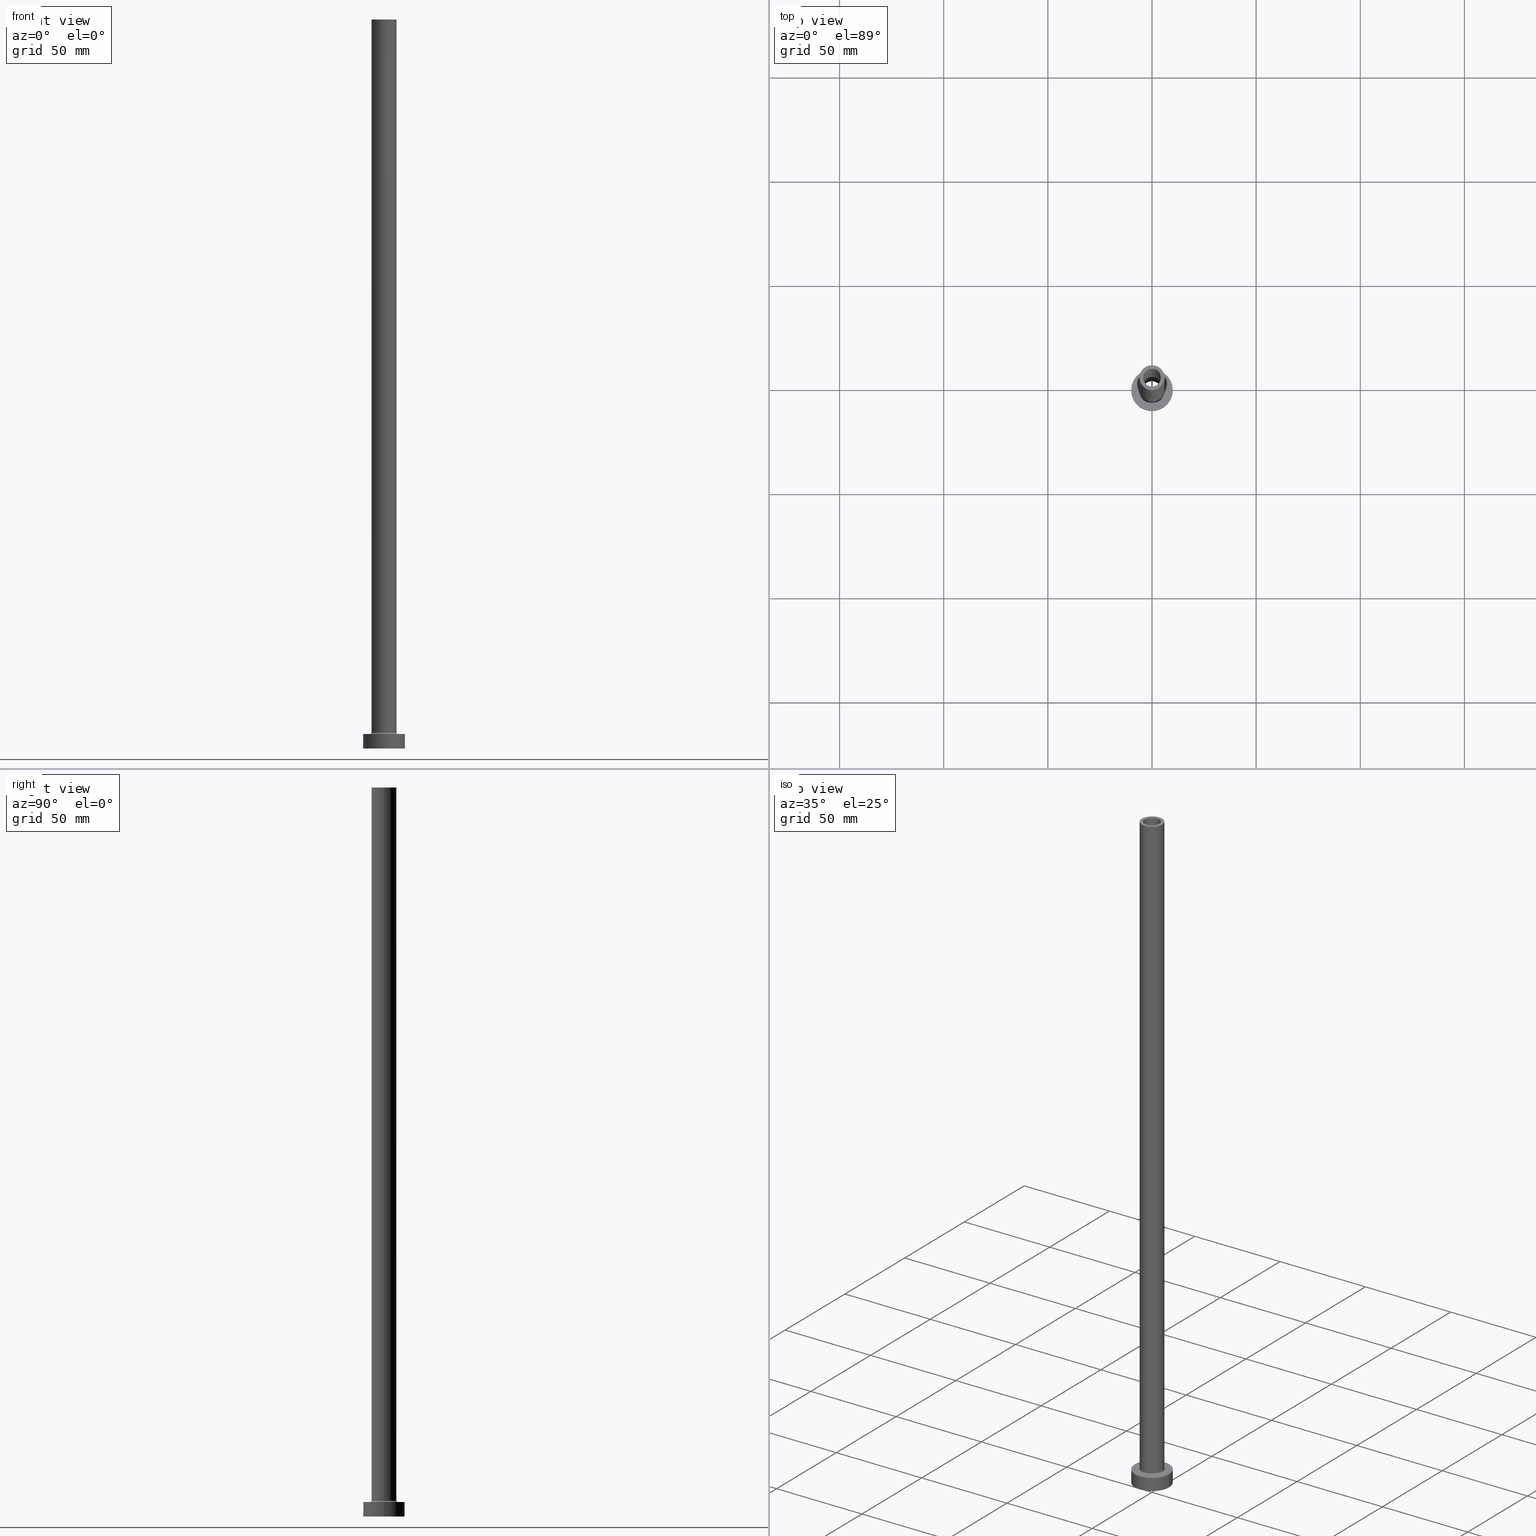
[diagram: canonical four-view strip — front | top / right | iso, engineering-drawing reading convention]
A machine part, canonical four-view strip (front | top / right | iso — engineering-drawing reading convention). The complete STEP part file that produces these views, byte-faithful:
ISO-10303-21;
HEADER;
FILE_DESCRIPTION (( 'STEP AP203' ),
    '1' );
FILE_NAME ('a1d7.STEP',
    '2023-02-13T11:56:31',
    ( '' ),
    ( '' ),
    'SwSTEP 2.0',
    'SolidWorks 2019',
    '' );
FILE_SCHEMA (( 'CONFIG_CONTROL_DESIGN' ));
ENDSEC;

DATA;
#1 = CARTESIAN_POINT ( 'NONE',  ( 0.000000000000000000, 0.000000000000000000, 7.699999999999985079 ) ) ;
#2 = DIRECTION ( 'NONE',  ( -0.000000000000000000, -0.000000000000000000, -1.000000000000000000 ) ) ;
#3 = PERSON_AND_ORGANIZATION ( #210, #286 ) ;
#4 = VERTEX_POINT ( 'NONE', #328 ) ;
#5 = EDGE_CURVE ( 'NONE', #386, #117, #93, .T. ) ;
#6 = SECURITY_CLASSIFICATION_LEVEL ( 'unclassified' ) ;
#7 = CYLINDRICAL_SURFACE ( 'NONE', #53, 10.00000000000000000 ) ;
#8 = DIRECTION ( 'NONE',  ( -0.000000000000000000, -0.000000000000000000, -1.000000000000000000 ) ) ;
#9 = EDGE_CURVE ( 'NONE', #422, #156, #184, .T. ) ;
#10 = PERSON_AND_ORGANIZATION_ROLE ( 'creator' ) ;
#11 = LINE ( 'NONE', #371, #37 ) ;
#12 = DIRECTION ( 'NONE',  ( 1.000000000000000000, 0.000000000000000000, -0.000000000000000000 ) ) ;
#13 = LOCAL_TIME ( 12, 56, 31.00000000000000000, #297 ) ;
#14 = DIRECTION ( 'NONE',  ( 1.000000000000000000, 0.000000000000000000, -0.000000000000000000 ) ) ;
#15 = DIRECTION ( 'NONE',  ( 0.000000000000000000, 0.000000000000000000, -1.000000000000000000 ) ) ;
#16 = ORIENTED_EDGE ( 'NONE', *, *, #442, .T. ) ;
#17 = EDGE_CURVE ( 'NONE', #117, #433, #358, .T. ) ;
#18 = DIRECTION ( 'NONE',  ( -1.000000000000000000, 0.000000000000000000, 0.000000000000000000 ) ) ;
#19 = EDGE_LOOP ( 'NONE', ( #79, #384 ) ) ;
#20 = AXIS2_PLACEMENT_3D ( 'NONE', #75, #454, #147 ) ;
#21 = EDGE_LOOP ( 'NONE', ( #251, #455, #70, #245 ) ) ;
#22 = ADVANCED_FACE ( 'NONE', ( #259 ), #399, .T. ) ;
#23 = DIRECTION ( 'NONE',  ( -0.000000000000000000, -0.000000000000000000, -1.000000000000000000 ) ) ;
#24 = ORIENTED_EDGE ( 'NONE', *, *, #200, .T. ) ;
#25 = DIRECTION ( 'NONE',  ( 0.000000000000000000, 0.000000000000000000, -1.000000000000000000 ) ) ;
#26 = DIRECTION ( 'NONE',  ( 0.000000000000000000, 0.000000000000000000, 1.000000000000000000 ) ) ;
#27 = AXIS2_PLACEMENT_3D ( 'NONE', #269, #407, #230 ) ;
#28 = ORIENTED_EDGE ( 'NONE', *, *, #208, .T. ) ;
#29 = PRODUCT_DEFINITION_FORMATION_WITH_SPECIFIED_SOURCE ( 'LIBOVOLN�', '', #197, .NOT_KNOWN. ) ;
#30 = DIRECTION ( 'NONE',  ( 1.000000000000000000, 0.000000000000000000, 0.000000000000000000 ) ) ;
#31 = DIRECTION ( 'NONE',  ( 1.000000000000000000, 0.000000000000000000, 0.000000000000000000 ) ) ;
#32 = EDGE_CURVE ( 'NONE', #113, #60, #461, .T. ) ;
#33 = ORIENTED_EDGE ( 'NONE', *, *, #305, .T. ) ;
#34 = CARTESIAN_POINT ( 'NONE',  ( 4.400000000000000355, 5.388445916248354013E-16, 317.4450793488833256 ) ) ;
#35 = ORIENTED_EDGE ( 'NONE', *, *, #404, .F. ) ;
#36 = CIRCLE ( 'NONE', #414, 4.400000000000000355 ) ;
#37 = VECTOR ( 'NONE', #199, 1000.000000000000000 ) ;
#38 = CIRCLE ( 'NONE', #176, 6.700000000000001066 ) ;
#39 = CC_DESIGN_PERSON_AND_ORGANIZATION_ASSIGNMENT ( #157, #268, ( #29 ) ) ;
#40 = ORIENTED_EDGE ( 'NONE', *, *, #398, .F. ) ;
#41 = CALENDAR_DATE ( 2023, 13, 2 ) ;
#42 = CARTESIAN_POINT ( 'NONE',  ( 0.000000000000000000, 0.000000000000000000, 305.0000000000000568 ) ) ;
#43 = COORDINATED_UNIVERSAL_TIME_OFFSET ( 1, 0, .AHEAD. ) ;
#44 = CARTESIAN_POINT ( 'NONE',  ( 0.000000000000000000, 0.000000000000000000, 0.000000000000000000 ) ) ;
#45 = PRODUCT_DEFINITION_SHAPE ( 'NONE', 'NONE',  #391 ) ;
#46 = VECTOR ( 'NONE', #174, 1000.000000000000000 ) ;
#47 = CIRCLE ( 'NONE', #238, 4.400000000000000355 ) ;
#48 = CIRCLE ( 'NONE', #374, 10.00000000000000000 ) ;
#49 = DIRECTION ( 'NONE',  ( 0.000000000000000000, 0.000000000000000000, 1.000000000000000000 ) ) ;
#50 = DATE_AND_TIME ( #41, #416 ) ;
#51 = FACE_OUTER_BOUND ( 'NONE', #395, .T. ) ;
#52 = DIRECTION ( 'NONE',  ( 1.000000000000000000, 0.000000000000000000, -0.000000000000000000 ) ) ;
#53 = AXIS2_PLACEMENT_3D ( 'NONE', #335, #121, #86 ) ;
#54 = AXIS2_PLACEMENT_3D ( 'NONE', #224, #2, #375 ) ;
#55 = VECTOR ( 'NONE', #321, 1000.000000000000000 ) ;
#56 = DIRECTION ( 'NONE',  ( -0.000000000000000000, -0.000000000000000000, -1.000000000000000000 ) ) ;
#57 = EDGE_LOOP ( 'NONE', ( #99, #317 ) ) ;
#58 = DIRECTION ( 'NONE',  ( 0.000000000000000000, 0.000000000000000000, 1.000000000000000000 ) ) ;
#59 = CARTESIAN_POINT ( 'NONE',  ( -4.400000000000000355, 0.000000000000000000, 317.4450793488833256 ) ) ;
#60 = VERTEX_POINT ( 'NONE', #405 ) ;
#61 = ADVANCED_FACE ( 'NONE', ( #118, #409 ), #236, .T. ) ;
#62 = CIRCLE ( 'NONE', #126, 4.250000000000000000 ) ;
#63 = CIRCLE ( 'NONE', #112, 4.250000000000000000 ) ;
#64 = CARTESIAN_POINT ( 'NONE',  ( 0.000000000000000000, 0.000000000000000000, 7.000000000000000000 ) ) ;
#65 = ORIENTED_EDGE ( 'NONE', *, *, #248, .T. ) ;
#66 = ORIENTED_EDGE ( 'NONE', *, *, #177, .T. ) ;
#67 = LINE ( 'NONE', #114, #55 ) ;
#68 = ORIENTED_EDGE ( 'NONE', *, *, #288, .F. ) ;
#69 = DIRECTION ( 'NONE',  ( 0.000000000000000000, 0.000000000000000000, 1.000000000000000000 ) ) ;
#70 = ORIENTED_EDGE ( 'NONE', *, *, #327, .F. ) ;
#71 = ADVANCED_FACE ( 'NONE', ( #308, #51 ), #166, .F. ) ;
#72 = AXIS2_PLACEMENT_3D ( 'NONE', #191, #69, #30 ) ;
#73 = DIRECTION ( 'NONE',  ( 0.000000000000000000, 0.000000000000000000, 1.000000000000000000 ) ) ;
#74 = DIRECTION ( 'NONE',  ( 1.000000000000000000, 0.000000000000000000, 0.000000000000000000 ) ) ;
#75 = CARTESIAN_POINT ( 'NONE',  ( 0.000000000000000000, 0.000000000000000000, 7.000000000000000000 ) ) ;
#76 = ORIENTED_EDGE ( 'NONE', *, *, #305, .F. ) ;
#77 = EDGE_CURVE ( 'NONE', #148, #361, #47, .T. ) ;
#78 = CARTESIAN_POINT ( 'NONE',  ( 6.000000000000000888, 7.347880794884120722E-16, 7.699999999999985079 ) ) ;
#79 = ORIENTED_EDGE ( 'NONE', *, *, #327, .T. ) ;
#80 = PERSON_AND_ORGANIZATION ( #210, #286 ) ;
#81 = CARTESIAN_POINT ( 'NONE',  ( 0.000000000000000000, 0.000000000000000000, 350.0000000000000568 ) ) ;
#82 = PERSON_AND_ORGANIZATION ( #210, #286 ) ;
#83 = CARTESIAN_POINT ( 'NONE',  ( -4.400000000000000355, 0.000000000000000000, 0.000000000000000000 ) ) ;
#84 = PERSON_AND_ORGANIZATION ( #210, #286 ) ;
#85 = MANIFOLD_SOLID_BREP ( 'Odebrat vysunut�m4', #169 ) ;
#86 = DIRECTION ( 'NONE',  ( -1.000000000000000000, 0.000000000000000000, 0.000000000000000000 ) ) ;
#87 = EDGE_CURVE ( 'NONE', #97, #106, #62, .T. ) ;
#88 = AXIS2_PLACEMENT_3D ( 'NONE', #222, #363, #460 ) ;
#89 = CC_DESIGN_APPROVAL ( #373, ( #29 ) ) ;
#90 = DATE_AND_TIME ( #233, #13 ) ;
#91 = CARTESIAN_POINT ( 'NONE',  ( 0.000000000000000000, 0.000000000000000000, 0.000000000000000000 ) ) ;
#92 = DIRECTION ( 'NONE',  ( 0.000000000000000000, 0.000000000000000000, -1.000000000000000000 ) ) ;
#93 = CIRCLE ( 'NONE', #314, 6.000000000000000888 ) ;
#94 = AXIS2_PLACEMENT_3D ( 'NONE', #64, #23, #211 ) ;
#95 = APPROVAL_PERSON_ORGANIZATION ( #3, #373, #437 ) ;
#96 = DIRECTION ( 'NONE',  ( -1.000000000000000000, 0.000000000000000000, 0.000000000000000000 ) ) ;
#97 = VERTEX_POINT ( 'NONE', #229 ) ;
#98 = CARTESIAN_POINT ( 'NONE',  ( 0.000000000000000000, 0.000000000000000000, 350.0000000000000568 ) ) ;
#99 = ORIENTED_EDGE ( 'NONE', *, *, #410, .F. ) ;
#100 = EDGE_CURVE ( 'NONE', #389, #287, #299, .T. ) ;
#101 = CARTESIAN_POINT ( 'NONE',  ( 6.700000000000001066, 0.000000000000000000, 6.999999999999992006 ) ) ;
#102 = EDGE_LOOP ( 'NONE', ( #40, #194, #325, #149 ) ) ;
#103 = CIRCLE ( 'NONE', #285, 6.000000000000000888 ) ;
#104 = CIRCLE ( 'NONE', #160, 4.400000000000000355 ) ;
#105 = CARTESIAN_POINT ( 'NONE',  ( 6.000000000000000888, 7.347880794884120722E-16, 350.0000000000000568 ) ) ;
#106 = VERTEX_POINT ( 'NONE', #332 ) ;
#107 = CARTESIAN_POINT ( 'NONE',  ( -10.00000000000000000, 0.000000000000000000, 7.000000000000000000 ) ) ;
#108 = ORIENTED_EDGE ( 'NONE', *, *, #248, .F. ) ;
#109 = EDGE_CURVE ( 'NONE', #156, #106, #11, .T. ) ;
#110 = DIRECTION ( 'NONE',  ( 0.000000000000000000, 0.000000000000000000, 1.000000000000000000 ) ) ;
#111 = ORIENTED_EDGE ( 'NONE', *, *, #109, .T. ) ;
#112 = AXIS2_PLACEMENT_3D ( 'NONE', #316, #280, #418 ) ;
#113 = VERTEX_POINT ( 'NONE', #228 ) ;
#114 = CARTESIAN_POINT ( 'NONE',  ( 10.00000000000000000, 1.224646799147353256E-15, 7.000000000000000000 ) ) ;
#115 = CARTESIAN_POINT ( 'NONE',  ( 0.000000000000000000, 0.000000000000000000, 7.699999999999985079 ) ) ;
#116 = ADVANCED_FACE ( 'NONE', ( #412, #201 ), #380, .T. ) ;
#117 = VERTEX_POINT ( 'NONE', #196 ) ;
#118 = FACE_BOUND ( 'NONE', #19, .T. ) ;
#119 = VECTOR ( 'NONE', #56, 1000.000000000000000 ) ;
#120 = AXIS2_PLACEMENT_3D ( 'NONE', #368, #221, #362 ) ;
#121 = DIRECTION ( 'NONE',  ( -0.000000000000000000, -0.000000000000000000, -1.000000000000000000 ) ) ;
#122 = CC_DESIGN_PERSON_AND_ORGANIZATION_ASSIGNMENT ( #329, #10, ( #29 ) ) ;
#123 = DIRECTION ( 'NONE',  ( 1.000000000000000000, 0.000000000000000000, 0.000000000000000000 ) ) ;
#124 = PERSON_AND_ORGANIZATION_ROLE ( 'creator' ) ;
#125 = DIRECTION ( 'NONE',  ( 0.000000000000000000, 0.000000000000000000, 1.000000000000000000 ) ) ;
#126 = AXIS2_PLACEMENT_3D ( 'NONE', #341, #49, #129 ) ;
#127 = LOCAL_TIME ( 12, 56, 31.00000000000000000, #271 ) ;
#128 = APPLICATION_PROTOCOL_DEFINITION ( 'international standard', 'config_control_design', 1994, #346 ) ;
#129 = DIRECTION ( 'NONE',  ( 1.000000000000000000, 0.000000000000000000, 0.000000000000000000 ) ) ;
#130 = CC_DESIGN_PERSON_AND_ORGANIZATION_ASSIGNMENT ( #434, #408, ( #351 ) ) ;
#131 = DIRECTION ( 'NONE',  ( 1.000000000000000000, 0.000000000000000000, 0.000000000000000000 ) ) ;
#132 = APPLICATION_CONTEXT ( 'configuration controlled 3d designs of mechanical parts and assemblies' ) ;
#133 = CARTESIAN_POINT ( 'NONE',  ( 0.000000000000000000, 0.000000000000000000, 317.4450793488833256 ) ) ;
#134 = ORIENTED_EDGE ( 'NONE', *, *, #167, .F. ) ;
#135 = AXIS2_PLACEMENT_3D ( 'NONE', #307, #234, #14 ) ;
#136 = VECTOR ( 'NONE', #348, 1000.000000000000000 ) ;
#137 = CARTESIAN_POINT ( 'NONE',  ( -4.250000000000000000, 0.000000000000000000, 350.0000000000000568 ) ) ;
#138 = FACE_OUTER_BOUND ( 'NONE', #247, .T. ) ;
#139 = ADVANCED_FACE ( 'NONE', ( #165 ), #7, .T. ) ;
#140 = EDGE_LOOP ( 'NONE', ( #369, #382, #212, #217 ) ) ;
#141 = FACE_OUTER_BOUND ( 'NONE', #450, .T. ) ;
#142 = ORIENTED_EDGE ( 'NONE', *, *, #77, .F. ) ;
#143 = CIRCLE ( 'NONE', #168, 4.250000000000000000 ) ;
#144 = AXIS2_PLACEMENT_3D ( 'NONE', #252, #254, #188 ) ;
#145 = DIRECTION ( 'NONE',  ( 1.000000000000000000, 0.000000000000000000, 0.000000000000000000 ) ) ;
#146 = APPROVAL ( #376, 'NEUR�EN�' ) ;
#147 = DIRECTION ( 'NONE',  ( 1.000000000000000000, 0.000000000000000000, 0.000000000000000000 ) ) ;
#148 = VERTEX_POINT ( 'NONE', #159 ) ;
#149 = ORIENTED_EDGE ( 'NONE', *, *, #200, .F. ) ;
#150 = AXIS2_PLACEMENT_3D ( 'NONE', #344, #246, #419 ) ;
#151 = MECHANICAL_CONTEXT ( 'NONE', #132, 'mechanical' ) ;
#152 = ADVANCED_FACE ( 'NONE', ( #306, #302 ), #438, .F. ) ;
#153 = AXIS2_PLACEMENT_3D ( 'NONE', #452, #293, #155 ) ;
#154 = VERTEX_POINT ( 'NONE', #83 ) ;
#155 = DIRECTION ( 'NONE',  ( 1.000000000000000000, 0.000000000000000000, 0.000000000000000000 ) ) ;
#156 = VERTEX_POINT ( 'NONE', #372 ) ;
#157 = PERSON_AND_ORGANIZATION ( #210, #286 ) ;
#158 = ORIENTED_EDGE ( 'NONE', *, *, #410, .T. ) ;
#159 = CARTESIAN_POINT ( 'NONE',  ( -4.400000000000000355, 0.000000000000000000, 305.0000000000000568 ) ) ;
#160 = AXIS2_PLACEMENT_3D ( 'NONE', #324, #73, #216 ) ;
#161 = EDGE_CURVE ( 'NONE', #4, #154, #36, .T. ) ;
#162 = COORDINATED_UNIVERSAL_TIME_OFFSET ( 1, 0, .AHEAD. ) ;
#163 = DIRECTION ( 'NONE',  ( 1.000000000000000000, 0.000000000000000000, 0.000000000000000000 ) ) ;
#164 = DATE_TIME_ROLE ( 'classification_date' ) ;
#165 = FACE_OUTER_BOUND ( 'NONE', #298, .T. ) ;
#166 = PLANE ( 'NONE',  #400 ) ;
#167 = EDGE_CURVE ( 'NONE', #287, #389, #103, .T. ) ;
#168 = AXIS2_PLACEMENT_3D ( 'NONE', #276, #58, #352 ) ;
#169 = CLOSED_SHELL ( 'NONE', ( #270, #232, #378, #22, #223, #139, #61, #152, #242, #116, #182, #189, #71, #323 ) ) ;
#170 = CC_DESIGN_APPROVAL ( #342, ( #351 ) ) ;
#171 = DIRECTION ( 'NONE',  ( 0.000000000000000000, 0.000000000000000000, 1.000000000000000000 ) ) ;
#172 = FACE_OUTER_BOUND ( 'NONE', #393, .T. ) ;
#173 = ORIENTED_EDGE ( 'NONE', *, *, #9, .F. ) ;
#174 = DIRECTION ( 'NONE',  ( -0.000000000000000000, -0.000000000000000000, -1.000000000000000000 ) ) ;
#175 = EDGE_LOOP ( 'NONE', ( #330, #134, #65, #353 ) ) ;
#176 = AXIS2_PLACEMENT_3D ( 'NONE', #318, #381, #449 ) ;
#177 = EDGE_CURVE ( 'NONE', #386, #326, #239, .T. ) ;
#178 = LINE ( 'NONE', #241, #136 ) ;
#179 = CARTESIAN_POINT ( 'NONE',  ( -6.000000000000000888, 0.000000000000000000, 350.0000000000000568 ) ) ;
#180 = DIRECTION ( 'NONE',  ( -1.000000000000000000, 0.000000000000000000, 0.000000000000000000 ) ) ;
#181 = EDGE_LOOP ( 'NONE', ( #207, #16, #261, #68 ) ) ;
#182 = ADVANCED_FACE ( 'NONE', ( #141 ), #300, .F. ) ;
#183 = AXIS2_PLACEMENT_3D ( 'NONE', #447, #279, #18 ) ;
#184 = CIRCLE ( 'NONE', #333, 4.250000000000000000 ) ;
#185 = CC_DESIGN_APPROVAL ( #146, ( #391 ) ) ;
#186 = CARTESIAN_POINT ( 'NONE',  ( -6.700000000000001066, 8.205133554287267548E-16, 6.999999999999992006 ) ) ;
#187 = ORIENTED_EDGE ( 'NONE', *, *, #9, .T. ) ;
#188 = DIRECTION ( 'NONE',  ( 1.000000000000000000, 0.000000000000000000, 0.000000000000000000 ) ) ;
#189 = ADVANCED_FACE ( 'NONE', ( #445 ), #388, .F. ) ;
#190 = ORIENTED_EDGE ( 'NONE', *, *, #167, .T. ) ;
#191 = CARTESIAN_POINT ( 'NONE',  ( 0.000000000000000000, 0.000000000000000000, 7.000000000000000000 ) ) ;
#192 = ORIENTED_EDGE ( 'NONE', *, *, #446, .F. ) ;
#193 = DATE_TIME_ROLE ( 'creation_date' ) ;
#194 = ORIENTED_EDGE ( 'NONE', *, *, #364, .T. ) ;
#195 = DATE_AND_TIME ( #304, #127 ) ;
#196 = CARTESIAN_POINT ( 'NONE',  ( -6.000000000000000888, 0.000000000000000000, 7.699999999999985079 ) ) ;
#197 = PRODUCT ( 'a1d7', 'a1d7', '', ( #151 ) ) ;
#198 = AXIS2_PLACEMENT_3D ( 'NONE', #133, #448, #96 ) ;
#199 = DIRECTION ( 'NONE',  ( 0.000000000000000000, 0.000000000000000000, -1.000000000000000000 ) ) ;
#200 = EDGE_CURVE ( 'NONE', #417, #60, #178, .T. ) ;
#201 = FACE_OUTER_BOUND ( 'NONE', #322, .T. ) ;
#202 = DIRECTION ( 'NONE',  ( 1.000000000000000000, 0.000000000000000000, 0.000000000000000000 ) ) ;
#203 = CIRCLE ( 'NONE', #453, 4.400000000000000355 ) ;
#204 = CARTESIAN_POINT ( 'NONE',  ( -6.000000000000000888, 0.000000000000000000, 350.0000000000000568 ) ) ;
#205 = ORIENTED_EDGE ( 'NONE', *, *, #109, .F. ) ;
#206 = CARTESIAN_POINT ( 'NONE',  ( 0.000000000000000000, 0.000000000000000000, 7.699999999999985079 ) ) ;
#207 = ORIENTED_EDGE ( 'NONE', *, *, #77, .T. ) ;
#208 = EDGE_CURVE ( 'NONE', #156, #422, #143, .T. ) ;
#209 = CYLINDRICAL_SURFACE ( 'NONE', #150, 4.400000000000000355 ) ;
#210 = PERSON ( 'NEUR�EN�', 'NEUR�EN�', 'NEUR�EN�', ('NEUR�EN�'), ('NEUR�EN�'), ('NEUR�EN�') ) ;
#211 = DIRECTION ( 'NONE',  ( -1.000000000000000000, 0.000000000000000000, 0.000000000000000000 ) ) ;
#212 = ORIENTED_EDGE ( 'NONE', *, *, #288, .T. ) ;
#213 = CC_DESIGN_PERSON_AND_ORGANIZATION_ASSIGNMENT ( #370, #124, ( #391 ) ) ;
#214 = DIRECTION ( 'NONE',  ( -0.000000000000000000, -0.000000000000000000, -1.000000000000000000 ) ) ;
#215 = ORIENTED_EDGE ( 'NONE', *, *, #87, .F. ) ;
#216 = DIRECTION ( 'NONE',  ( 1.000000000000000000, 0.000000000000000000, 0.000000000000000000 ) ) ;
#217 = ORIENTED_EDGE ( 'NONE', *, *, #404, .T. ) ;
#218 = AXIS2_PLACEMENT_3D ( 'NONE', #91, #171, #337 ) ;
#219 = CC_DESIGN_SECURITY_CLASSIFICATION ( #351, ( #29 ) ) ;
#220 = DIRECTION ( 'NONE',  ( 0.000000000000000000, 0.000000000000000000, 1.000000000000000000 ) ) ;
#221 = DIRECTION ( 'NONE',  ( 0.000000000000000000, 0.000000000000000000, 1.000000000000000000 ) ) ;
#222 = CARTESIAN_POINT ( 'NONE',  ( -6.700000000000001066, 8.205133554287267548E-16, 7.699999999999985079 ) ) ;
#223 = ADVANCED_FACE ( 'NONE', ( #244 ), #275, .T. ) ;
#224 = CARTESIAN_POINT ( 'NONE',  ( 0.000000000000000000, 0.000000000000000000, 350.0000000000000568 ) ) ;
#225 = DIRECTION ( 'NONE',  ( 1.000000000000000000, 0.000000000000000000, 0.000000000000000000 ) ) ;
#226 = ORIENTED_EDGE ( 'NONE', *, *, #5, .T. ) ;
#227 = APPROVAL_ROLE ( '' ) ;
#228 = CARTESIAN_POINT ( 'NONE',  ( 10.00000000000000000, 1.224646799147353256E-15, 0.000000000000000000 ) ) ;
#229 = CARTESIAN_POINT ( 'NONE',  ( -4.250000000000000000, 0.000000000000000000, 305.0000000000000568 ) ) ;
#230 = DIRECTION ( 'NONE',  ( 0.000000000000000000, 0.000000000000000000, -1.000000000000000000 ) ) ;
#231 = APPROVAL_PERSON_ORGANIZATION ( #80, #342, #227 ) ;
#232 = ADVANCED_FACE ( 'NONE', ( #444 ), #209, .F. ) ;
#233 = CALENDAR_DATE ( 2023, 13, 2 ) ;
#234 = DIRECTION ( 'NONE',  ( 0.000000000000000000, 0.000000000000000000, 1.000000000000000000 ) ) ;
#235 = CALENDAR_DATE ( 2023, 13, 2 ) ;
#236 = PLANE ( 'NONE',  #135 ) ;
#237 = CYLINDRICAL_SURFACE ( 'NONE', #319, 6.000000000000000888 ) ;
#238 = AXIS2_PLACEMENT_3D ( 'NONE', #42, #443, #202 ) ;
#239 = CIRCLE ( 'NONE', #27, 0.7000000000000000666 ) ;
#240 =( GEOMETRIC_REPRESENTATION_CONTEXT ( 3 ) GLOBAL_UNCERTAINTY_ASSIGNED_CONTEXT ( ( #431 ) ) GLOBAL_UNIT_ASSIGNED_CONTEXT ( ( #424, #394, #427 ) ) REPRESENTATION_CONTEXT ( 'NONE', 'WORKASPACE' ) );
#241 = CARTESIAN_POINT ( 'NONE',  ( -10.00000000000000000, 0.000000000000000000, 7.000000000000000000 ) ) ;
#242 = ADVANCED_FACE ( 'NONE', ( #390 ), #237, .T. ) ;
#243 = ORIENTED_EDGE ( 'NONE', *, *, #387, .F. ) ;
#244 = FACE_OUTER_BOUND ( 'NONE', #102, .T. ) ;
#245 = ORIENTED_EDGE ( 'NONE', *, *, #177, .F. ) ;
#246 = DIRECTION ( 'NONE',  ( 0.000000000000000000, 0.000000000000000000, -1.000000000000000000 ) ) ;
#247 = EDGE_LOOP ( 'NONE', ( #187, #111, #215, #76 ) ) ;
#248 = EDGE_CURVE ( 'NONE', #287, #117, #415, .T. ) ;
#249 = AXIS2_PLACEMENT_3D ( 'NONE', #377, #274, #402 ) ;
#250 = CARTESIAN_POINT ( 'NONE',  ( 0.000000000000000000, 0.000000000000000000, 350.0000000000000568 ) ) ;
#251 = ORIENTED_EDGE ( 'NONE', *, *, #451, .F. ) ;
#252 = CARTESIAN_POINT ( 'NONE',  ( 0.000000000000000000, 0.000000000000000000, 0.000000000000000000 ) ) ;
#253 = ORIENTED_EDGE ( 'NONE', *, *, #161, .F. ) ;
#254 = DIRECTION ( 'NONE',  ( 0.000000000000000000, 0.000000000000000000, 1.000000000000000000 ) ) ;
#255 = ORIENTED_EDGE ( 'NONE', *, *, #315, .T. ) ;
#256 = AXIS2_PLACEMENT_3D ( 'NONE', #1, #110, #289 ) ;
#257 = DIRECTION ( 'NONE',  ( -0.000000000000000000, -0.000000000000000000, -1.000000000000000000 ) ) ;
#258 = CARTESIAN_POINT ( 'NONE',  ( 0.000000000000000000, 0.000000000000000000, 350.0000000000000568 ) ) ;
#259 = FACE_OUTER_BOUND ( 'NONE', #313, .T. ) ;
#260 = DESIGN_CONTEXT ( 'detailed design', #346, 'design' ) ;
#261 = ORIENTED_EDGE ( 'NONE', *, *, #161, .T. ) ;
#262 = PRODUCT_RELATED_PRODUCT_CATEGORY ( 'detail', '', ( #197 ) ) ;
#263 = COORDINATED_UNIVERSAL_TIME_OFFSET ( 1, 0, .AHEAD. ) ;
#264 = VECTOR ( 'NONE', #392, 1000.000000000000000 ) ;
#265 = CARTESIAN_POINT ( 'NONE',  ( 0.000000000000000000, 0.000000000000000000, 305.0000000000000568 ) ) ;
#266 = PERSON_AND_ORGANIZATION_ROLE ( 'design_owner' ) ;
#267 = DIRECTION ( 'NONE',  ( 1.000000000000000000, 0.000000000000000000, -0.000000000000000000 ) ) ;
#268 = PERSON_AND_ORGANIZATION_ROLE ( 'design_supplier' ) ;
#269 = CARTESIAN_POINT ( 'NONE',  ( 6.700000000000001066, 0.000000000000000000, 7.699999999999985079 ) ) ;
#270 = ADVANCED_FACE ( 'NONE', ( #138 ), #311, .F. ) ;
#271 = COORDINATED_UNIVERSAL_TIME_OFFSET ( 1, 0, .AHEAD. ) ;
#272 = DIRECTION ( 'NONE',  ( 0.000000000000000000, 0.000000000000000000, 1.000000000000000000 ) ) ;
#273 = APPROVAL_DATE_TIME ( #90, #146 ) ;
#274 = DIRECTION ( 'NONE',  ( 0.000000000000000000, 0.000000000000000000, 1.000000000000000000 ) ) ;
#275 = CYLINDRICAL_SURFACE ( 'NONE', #94, 10.00000000000000000 ) ;
#276 = CARTESIAN_POINT ( 'NONE',  ( 0.000000000000000000, 0.000000000000000000, 350.0000000000000568 ) ) ;
#277 = EDGE_LOOP ( 'NONE', ( #430, #255 ) ) ;
#278 = APPROVAL_PERSON_ORGANIZATION ( #82, #146, #440 ) ;
#279 = DIRECTION ( 'NONE',  ( 0.000000000000000000, 0.000000000000000000, -1.000000000000000000 ) ) ;
#280 = DIRECTION ( 'NONE',  ( 0.000000000000000000, 0.000000000000000000, 1.000000000000000000 ) ) ;
#281 = ORIENTED_EDGE ( 'NONE', *, *, #458, .T. ) ;
#282 = EDGE_CURVE ( 'NONE', #389, #386, #283, .T. ) ;
#283 = LINE ( 'NONE', #105, #46 ) ;
#284 = ORIENTED_EDGE ( 'NONE', *, *, #458, .F. ) ;
#285 = AXIS2_PLACEMENT_3D ( 'NONE', #303, #439, #123 ) ;
#286 = ORGANIZATION ( 'NEUR�EN�', 'NEUR�EN�', '' ) ;
#287 = VERTEX_POINT ( 'NONE', #179 ) ;
#288 = EDGE_CURVE ( 'NONE', #148, #154, #413, .T. ) ;
#289 = DIRECTION ( 'NONE',  ( 1.000000000000000000, 0.000000000000000000, 0.000000000000000000 ) ) ;
#290 = ORIENTED_EDGE ( 'NONE', *, *, #208, .F. ) ;
#291 = VECTOR ( 'NONE', #25, 1000.000000000000000 ) ;
#292 = CIRCLE ( 'NONE', #72, 10.00000000000000000 ) ;
#293 = DIRECTION ( 'NONE',  ( 0.000000000000000000, 0.000000000000000000, 1.000000000000000000 ) ) ;
#294 = EDGE_LOOP ( 'NONE', ( #35, #253 ) ) ;
#295 = ORIENTED_EDGE ( 'NONE', *, *, #5, .F. ) ;
#296 = CC_DESIGN_PERSON_AND_ORGANIZATION_ASSIGNMENT ( #84, #266, ( #197 ) ) ;
#297 = COORDINATED_UNIVERSAL_TIME_OFFSET ( 1, 0, .AHEAD. ) ;
#298 = EDGE_LOOP ( 'NONE', ( #357, #284, #24, #158 ) ) ;
#299 = CIRCLE ( 'NONE', #249, 6.000000000000000888 ) ;
#300 = TOROIDAL_SURFACE ( 'NONE', #312, 6.700000000000001066, 0.6999999999999999556 ) ;
#301 = CIRCLE ( 'NONE', #120, 6.000000000000000888 ) ;
#302 = FACE_OUTER_BOUND ( 'NONE', #57, .T. ) ;
#303 = CARTESIAN_POINT ( 'NONE',  ( 0.000000000000000000, 0.000000000000000000, 350.0000000000000568 ) ) ;
#304 = CALENDAR_DATE ( 2023, 13, 2 ) ;
#305 = EDGE_CURVE ( 'NONE', #422, #97, #383, .T. ) ;
#306 = FACE_BOUND ( 'NONE', #294, .T. ) ;
#307 = CARTESIAN_POINT ( 'NONE',  ( 0.000000000000000000, 0.000000000000000000, 7.000000000000000000 ) ) ;
#308 = FACE_BOUND ( 'NONE', #277, .T. ) ;
#309 = CC_DESIGN_DATE_AND_TIME_ASSIGNMENT ( #379, #193, ( #391 ) ) ;
#310 = CARTESIAN_POINT ( 'NONE',  ( 4.400000000000000355, 5.388445916248354013E-16, 305.0000000000000568 ) ) ;
#311 = CYLINDRICAL_SURFACE ( 'NONE', #183, 4.250000000000000000 ) ;
#312 = AXIS2_PLACEMENT_3D ( 'NONE', #206, #347, #131 ) ;
#313 = EDGE_LOOP ( 'NONE', ( #350, #420, #226, #108 ) ) ;
#314 = AXIS2_PLACEMENT_3D ( 'NONE', #115, #220, #31 ) ;
#315 = EDGE_CURVE ( 'NONE', #106, #97, #63, .T. ) ;
#316 = CARTESIAN_POINT ( 'NONE',  ( 0.000000000000000000, 0.000000000000000000, 305.0000000000000568 ) ) ;
#317 = ORIENTED_EDGE ( 'NONE', *, *, #32, .F. ) ;
#318 = CARTESIAN_POINT ( 'NONE',  ( 0.000000000000000000, 0.000000000000000000, 7.000000000000000000 ) ) ;
#319 = AXIS2_PLACEMENT_3D ( 'NONE', #250, #214, #421 ) ;
#320 = CIRCLE ( 'NONE', #20, 6.700000000000001066 ) ;
#321 = DIRECTION ( 'NONE',  ( -0.000000000000000000, -0.000000000000000000, -1.000000000000000000 ) ) ;
#322 = EDGE_LOOP ( 'NONE', ( #190, #366 ) ) ;
#323 = ADVANCED_FACE ( 'NONE', ( #172 ), #354, .F. ) ;
#324 = CARTESIAN_POINT ( 'NONE',  ( 0.000000000000000000, 0.000000000000000000, 305.0000000000000568 ) ) ;
#325 = ORIENTED_EDGE ( 'NONE', *, *, #32, .T. ) ;
#326 = VERTEX_POINT ( 'NONE', #101 ) ;
#327 = EDGE_CURVE ( 'NONE', #326, #433, #38, .T. ) ;
#328 = CARTESIAN_POINT ( 'NONE',  ( 4.400000000000000355, 5.388445916248354013E-16, 0.000000000000000000 ) ) ;
#329 = PERSON_AND_ORGANIZATION ( #210, #286 ) ;
#330 = ORIENTED_EDGE ( 'NONE', *, *, #282, .F. ) ;
#331 = APPROVAL_DATE_TIME ( #195, #342 ) ;
#332 = CARTESIAN_POINT ( 'NONE',  ( 4.250000000000000000, 5.204748896376249713E-16, 305.0000000000000568 ) ) ;
#333 = AXIS2_PLACEMENT_3D ( 'NONE', #258, #397, #74 ) ;
#334 = APPROVAL_DATE_TIME ( #336, #373 ) ;
#335 = CARTESIAN_POINT ( 'NONE',  ( 0.000000000000000000, 0.000000000000000000, 7.000000000000000000 ) ) ;
#336 = DATE_AND_TIME ( #411, #360 ) ;
#337 = DIRECTION ( 'NONE',  ( 1.000000000000000000, 0.000000000000000000, 0.000000000000000000 ) ) ;
#338 = APPROVAL_STATUS ( 'not_yet_approved' ) ;
#339 = DIRECTION ( 'NONE',  ( 0.000000000000000000, 0.000000000000000000, 1.000000000000000000 ) ) ;
#340 = AXIS2_PLACEMENT_3D ( 'NONE', #81, #339, #12 ) ;
#341 = CARTESIAN_POINT ( 'NONE',  ( 0.000000000000000000, 0.000000000000000000, 305.0000000000000568 ) ) ;
#342 = APPROVAL ( #406, 'NEUR�EN�' ) ;
#343 = AXIS2_PLACEMENT_3D ( 'NONE', #98, #15, #180 ) ;
#344 = CARTESIAN_POINT ( 'NONE',  ( 0.000000000000000000, 0.000000000000000000, 317.4450793488833256 ) ) ;
#345 = VERTEX_POINT ( 'NONE', #385 ) ;
#346 = APPLICATION_CONTEXT ( 'configuration controlled 3d designs of mechanical parts and assemblies' ) ;
#347 = DIRECTION ( 'NONE',  ( 0.000000000000000000, 0.000000000000000000, 1.000000000000000000 ) ) ;
#348 = DIRECTION ( 'NONE',  ( -0.000000000000000000, -0.000000000000000000, -1.000000000000000000 ) ) ;
#349 = AXIS2_PLACEMENT_3D ( 'NONE', #441, #272, #267 ) ;
#350 = ORIENTED_EDGE ( 'NONE', *, *, #100, .F. ) ;
#351 = SECURITY_CLASSIFICATION ( '', '', #6 ) ;
#352 = DIRECTION ( 'NONE',  ( 1.000000000000000000, 0.000000000000000000, 0.000000000000000000 ) ) ;
#353 = ORIENTED_EDGE ( 'NONE', *, *, #451, .T. ) ;
#354 = CYLINDRICAL_SURFACE ( 'NONE', #343, 4.250000000000000000 ) ;
#355 = ORIENTED_EDGE ( 'NONE', *, *, #398, .T. ) ;
#356 = CARTESIAN_POINT ( 'NONE',  ( 6.000000000000000888, 7.347880794884120722E-16, 350.0000000000000568 ) ) ;
#357 = ORIENTED_EDGE ( 'NONE', *, *, #364, .F. ) ;
#358 = CIRCLE ( 'NONE', #88, 0.7000000000000000666 ) ;
#359 = VECTOR ( 'NONE', #92, 1000.000000000000000 ) ;
#360 = LOCAL_TIME ( 12, 56, 31.00000000000000000, #162 ) ;
#361 = VERTEX_POINT ( 'NONE', #310 ) ;
#362 = DIRECTION ( 'NONE',  ( 1.000000000000000000, 0.000000000000000000, 0.000000000000000000 ) ) ;
#363 = DIRECTION ( 'NONE',  ( 1.224646799147353207E-16, 1.000000000000000000, -0.000000000000000000 ) ) ;
#364 = EDGE_CURVE ( 'NONE', #345, #113, #67, .T. ) ;
#365 = CARTESIAN_POINT ( 'NONE',  ( 0.000000000000000000, 0.000000000000000000, 0.000000000000000000 ) ) ;
#366 = ORIENTED_EDGE ( 'NONE', *, *, #100, .T. ) ;
#367 = CIRCLE ( 'NONE', #144, 10.00000000000000000 ) ;
#368 = CARTESIAN_POINT ( 'NONE',  ( 0.000000000000000000, 0.000000000000000000, 7.699999999999985079 ) ) ;
#369 = ORIENTED_EDGE ( 'NONE', *, *, #442, .F. ) ;
#370 = PERSON_AND_ORGANIZATION ( #210, #286 ) ;
#371 = CARTESIAN_POINT ( 'NONE',  ( 4.250000000000000000, 5.204748896376249713E-16, 350.0000000000000568 ) ) ;
#372 = CARTESIAN_POINT ( 'NONE',  ( 4.250000000000000000, 5.204748896376249713E-16, 350.0000000000000568 ) ) ;
#373 = APPROVAL ( #338, 'NEUR�EN�' ) ;
#374 = AXIS2_PLACEMENT_3D ( 'NONE', #425, #26, #225 ) ;
#375 = DIRECTION ( 'NONE',  ( -1.000000000000000000, 0.000000000000000000, 0.000000000000000000 ) ) ;
#376 = APPROVAL_STATUS ( 'not_yet_approved' ) ;
#377 = CARTESIAN_POINT ( 'NONE',  ( 0.000000000000000000, 0.000000000000000000, 350.0000000000000568 ) ) ;
#378 = ADVANCED_FACE ( 'NONE', ( #429 ), #401, .F. ) ;
#379 = DATE_AND_TIME ( #235, #436 ) ;
#380 = PLANE ( 'NONE',  #340 ) ;
#381 = DIRECTION ( 'NONE',  ( -0.000000000000000000, -0.000000000000000000, -1.000000000000000000 ) ) ;
#382 = ORIENTED_EDGE ( 'NONE', *, *, #387, .T. ) ;
#383 = LINE ( 'NONE', #137, #291 ) ;
#384 = ORIENTED_EDGE ( 'NONE', *, *, #446, .T. ) ;
#385 = CARTESIAN_POINT ( 'NONE',  ( 10.00000000000000000, 1.224646799147353256E-15, 7.000000000000000000 ) ) ;
#386 = VERTEX_POINT ( 'NONE', #78 ) ;
#387 = EDGE_CURVE ( 'NONE', #361, #148, #104, .T. ) ;
#388 = CYLINDRICAL_SURFACE ( 'NONE', #198, 4.400000000000000355 ) ;
#389 = VERTEX_POINT ( 'NONE', #356 ) ;
#390 = FACE_OUTER_BOUND ( 'NONE', #175, .T. ) ;
#391 = PRODUCT_DEFINITION ( 'NEZN�M�', '', #29, #260 ) ;
#392 = DIRECTION ( 'NONE',  ( 0.000000000000000000, 0.000000000000000000, -1.000000000000000000 ) ) ;
#393 = EDGE_LOOP ( 'NONE', ( #205, #28, #33, #457 ) ) ;
#394 =( NAMED_UNIT ( * ) PLANE_ANGLE_UNIT ( ) SI_UNIT ( $, .RADIAN. ) );
#395 = EDGE_LOOP ( 'NONE', ( #142, #243 ) ) ;
#396 = LINE ( 'NONE', #34, #264 ) ;
#397 = DIRECTION ( 'NONE',  ( 0.000000000000000000, 0.000000000000000000, 1.000000000000000000 ) ) ;
#398 = EDGE_CURVE ( 'NONE', #345, #417, #48, .T. ) ;
#399 = CYLINDRICAL_SURFACE ( 'NONE', #54, 6.000000000000000888 ) ;
#400 = AXIS2_PLACEMENT_3D ( 'NONE', #265, #125, #52 ) ;
#401 = TOROIDAL_SURFACE ( 'NONE', #256, 6.700000000000001066, 0.6999999999999999556 ) ;
#402 = DIRECTION ( 'NONE',  ( 1.000000000000000000, 0.000000000000000000, 0.000000000000000000 ) ) ;
#403 = SHAPE_DEFINITION_REPRESENTATION ( #45, #456 ) ;
#404 = EDGE_CURVE ( 'NONE', #154, #4, #203, .T. ) ;
#405 = CARTESIAN_POINT ( 'NONE',  ( -10.00000000000000000, 0.000000000000000000, 0.000000000000000000 ) ) ;
#406 = APPROVAL_STATUS ( 'not_yet_approved' ) ;
#407 = DIRECTION ( 'NONE',  ( 0.000000000000000000, -1.000000000000000000, 0.000000000000000000 ) ) ;
#408 = PERSON_AND_ORGANIZATION_ROLE ( 'classification_officer' ) ;
#409 = FACE_OUTER_BOUND ( 'NONE', #426, .T. ) ;
#410 = EDGE_CURVE ( 'NONE', #60, #113, #367, .T. ) ;
#411 = CALENDAR_DATE ( 2023, 13, 2 ) ;
#412 = FACE_BOUND ( 'NONE', #428, .T. ) ;
#413 = LINE ( 'NONE', #59, #359 ) ;
#414 = AXIS2_PLACEMENT_3D ( 'NONE', #44, #8, #163 ) ;
#415 = LINE ( 'NONE', #204, #119 ) ;
#416 = LOCAL_TIME ( 12, 56, 31.00000000000000000, #43 ) ;
#417 = VERTEX_POINT ( 'NONE', #107 ) ;
#418 = DIRECTION ( 'NONE',  ( 1.000000000000000000, 0.000000000000000000, 0.000000000000000000 ) ) ;
#419 = DIRECTION ( 'NONE',  ( -1.000000000000000000, 0.000000000000000000, 0.000000000000000000 ) ) ;
#420 = ORIENTED_EDGE ( 'NONE', *, *, #282, .T. ) ;
#421 = DIRECTION ( 'NONE',  ( -1.000000000000000000, 0.000000000000000000, 0.000000000000000000 ) ) ;
#422 = VERTEX_POINT ( 'NONE', #432 ) ;
#423 = CC_DESIGN_DATE_AND_TIME_ASSIGNMENT ( #50, #164, ( #351 ) ) ;
#424 =( LENGTH_UNIT ( ) NAMED_UNIT ( * ) SI_UNIT ( .MILLI., .METRE. ) );
#425 = CARTESIAN_POINT ( 'NONE',  ( 0.000000000000000000, 0.000000000000000000, 7.000000000000000000 ) ) ;
#426 = EDGE_LOOP ( 'NONE', ( #281, #355 ) ) ;
#427 =( NAMED_UNIT ( * ) SI_UNIT ( $, .STERADIAN. ) SOLID_ANGLE_UNIT ( ) );
#428 = EDGE_LOOP ( 'NONE', ( #173, #290 ) ) ;
#429 = FACE_OUTER_BOUND ( 'NONE', #21, .T. ) ;
#430 = ORIENTED_EDGE ( 'NONE', *, *, #87, .T. ) ;
#431 = UNCERTAINTY_MEASURE_WITH_UNIT (LENGTH_MEASURE( 1.000000000000000082E-05 ), #424, 'distance_accuracy_value', 'NONE');
#432 = CARTESIAN_POINT ( 'NONE',  ( -4.250000000000000000, 0.000000000000000000, 350.0000000000000568 ) ) ;
#433 = VERTEX_POINT ( 'NONE', #186 ) ;
#434 = PERSON_AND_ORGANIZATION ( #210, #286 ) ;
#435 = ORIENTED_EDGE ( 'NONE', *, *, #17, .F. ) ;
#436 = LOCAL_TIME ( 12, 56, 31.00000000000000000, #263 ) ;
#437 = APPROVAL_ROLE ( '' ) ;
#438 = PLANE ( 'NONE',  #349 ) ;
#439 = DIRECTION ( 'NONE',  ( 0.000000000000000000, 0.000000000000000000, 1.000000000000000000 ) ) ;
#440 = APPROVAL_ROLE ( '' ) ;
#441 = CARTESIAN_POINT ( 'NONE',  ( 0.000000000000000000, 0.000000000000000000, 0.000000000000000000 ) ) ;
#442 = EDGE_CURVE ( 'NONE', #361, #4, #396, .T. ) ;
#443 = DIRECTION ( 'NONE',  ( 0.000000000000000000, 0.000000000000000000, 1.000000000000000000 ) ) ;
#444 = FACE_OUTER_BOUND ( 'NONE', #181, .T. ) ;
#445 = FACE_OUTER_BOUND ( 'NONE', #140, .T. ) ;
#446 = EDGE_CURVE ( 'NONE', #433, #326, #320, .T. ) ;
#447 = CARTESIAN_POINT ( 'NONE',  ( 0.000000000000000000, 0.000000000000000000, 350.0000000000000568 ) ) ;
#448 = DIRECTION ( 'NONE',  ( 0.000000000000000000, 0.000000000000000000, -1.000000000000000000 ) ) ;
#449 = DIRECTION ( 'NONE',  ( 1.000000000000000000, 0.000000000000000000, 0.000000000000000000 ) ) ;
#450 = EDGE_LOOP ( 'NONE', ( #435, #295, #66, #192 ) ) ;
#451 = EDGE_CURVE ( 'NONE', #117, #386, #301, .T. ) ;
#452 = CARTESIAN_POINT ( 'NONE',  ( 0.000000000000000000, 0.000000000000000000, 0.000000000000000000 ) ) ;
#453 = AXIS2_PLACEMENT_3D ( 'NONE', #365, #257, #145 ) ;
#454 = DIRECTION ( 'NONE',  ( -0.000000000000000000, -0.000000000000000000, -1.000000000000000000 ) ) ;
#455 = ORIENTED_EDGE ( 'NONE', *, *, #17, .T. ) ;
#456 = ADVANCED_BREP_SHAPE_REPRESENTATION ( 'a1d7', ( #85, #153 ), #240 ) ;
#457 = ORIENTED_EDGE ( 'NONE', *, *, #315, .F. ) ;
#458 = EDGE_CURVE ( 'NONE', #417, #345, #292, .T. ) ;
#459 = APPLICATION_PROTOCOL_DEFINITION ( 'international standard', 'config_control_design', 1994, #132 ) ;
#460 = DIRECTION ( 'NONE',  ( -1.000000000000000000, 1.224646799147353454E-16, 0.000000000000000000 ) ) ;
#461 = CIRCLE ( 'NONE', #218, 10.00000000000000000 ) ;
ENDSEC;
END-ISO-10303-21;
